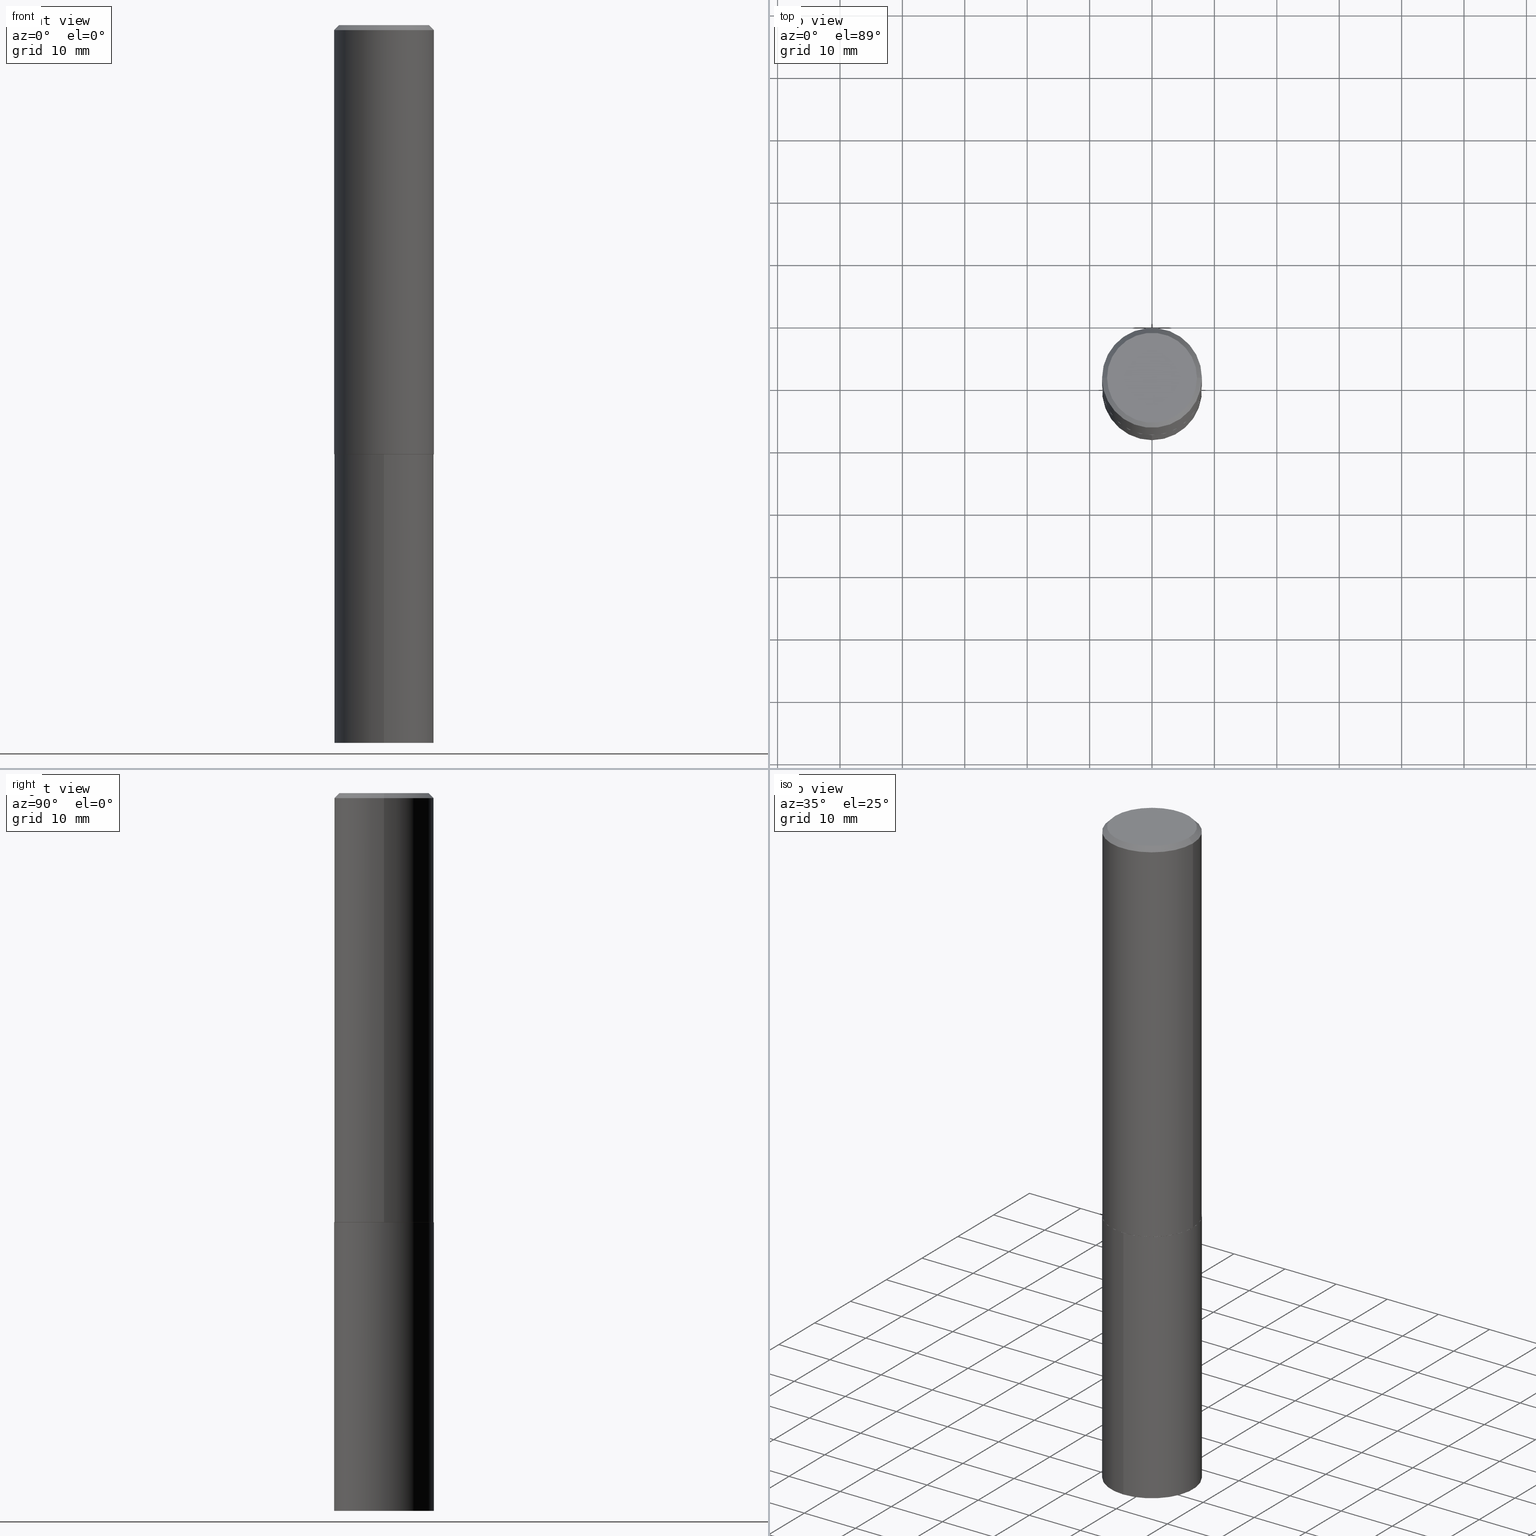
[diagram: canonical four-view strip — front | top / right | iso, engineering-drawing reading convention]
A machine part, canonical four-view strip (front | top / right | iso — engineering-drawing reading convention). The complete STEP part file that produces these views, byte-faithful:
ISO-10303-21;
HEADER;
FILE_DESCRIPTION (( 'STEP AP203' ),
    '1' );
FILE_NAME ('67806.STEP',
    '2024-04-23T12:54:03',
    ( '' ),
    ( '' ),
    'SwSTEP 2.0',
    'SolidWorks 2023',
    '' );
FILE_SCHEMA (( 'CONFIG_CONTROL_DESIGN' ));
ENDSEC;

DATA;
#1 = PERSON_AND_ORGANIZATION ( #340, #273 ) ;
#2 = COORDINATED_UNIVERSAL_TIME_OFFSET ( 5, 0, .BEHIND. ) ;
#3 = VERTEX_POINT ( 'NONE', #321 ) ;
#4 = LOCAL_TIME ( 8, 54, 3.000000000000000000, #2 ) ;
#5 = AXIS2_PLACEMENT_3D ( 'NONE', #272, #296, #136 ) ;
#6 = PERSON_AND_ORGANIZATION ( #340, #273 ) ;
#7 = ORIENTED_EDGE ( 'NONE', *, *, #188, .T. ) ;
#8 = APPROVAL_STATUS ( 'not_yet_approved' ) ;
#9 = ORIENTED_EDGE ( 'NONE', *, *, #268, .T. ) ;
#10 = ORIENTED_EDGE ( 'NONE', *, *, #213, .T. ) ;
#11 = ADVANCED_FACE ( 'NONE', ( #65 ), #176, .T. ) ;
#12 = VECTOR ( 'NONE', #239, 39.37007874015748854 ) ;
#13 = EDGE_LOOP ( 'NONE', ( #95, #316, #9, #120 ) ) ;
#14 = EDGE_LOOP ( 'NONE', ( #172, #224, #206, #254 ) ) ;
#15 = PLANE ( 'NONE',  #242 ) ;
#16 = FACE_OUTER_BOUND ( 'NONE', #277, .T. ) ;
#17 = PRODUCT_DEFINITION_FORMATION_WITH_SPECIFIED_SOURCE ( 'ANY', '', #200, .NOT_KNOWN. ) ;
#18 = DIRECTION ( 'NONE',  ( 2.445468806185136597E-29, -3.491481338843145583E-15, -1.000000000000000000 ) ) ;
#19 = VECTOR ( 'NONE', #292, 39.37007874015748854 ) ;
#20 = CARTESIAN_POINT ( 'NONE',  ( 6.618905870820689755E-29, -9.450043391712855461E-15, -2.706599999999999451 ) ) ;
#21 = CARTESIAN_POINT ( 'NONE',  ( 6.618905870820689755E-29, -9.450043391712855461E-15, -2.706599999999999451 ) ) ;
#22 = PRODUCT_DEFINITION ( 'UNKNOWN', '', #17, #86 ) ;
#23 = EDGE_CURVE ( 'NONE', #64, #61, #353, .T. ) ;
#24 = DIRECTION ( 'NONE',  ( -2.445468806185136597E-29, 3.491481338843145583E-15, 1.000000000000000000 ) ) ;
#25 = DIRECTION ( 'NONE',  ( 2.445468806185136597E-29, -3.491481338843145583E-15, -1.000000000000000000 ) ) ;
#26 = ORIENTED_EDGE ( 'NONE', *, *, #104, .T. ) ;
#27 = FACE_OUTER_BOUND ( 'NONE', #260, .T. ) ;
#28 = PERSON_AND_ORGANIZATION ( #340, #273 ) ;
#29 = ORIENTED_EDGE ( 'NONE', *, *, #256, .F. ) ;
#30 = PRODUCT_DEFINITION_SHAPE ( 'NONE', 'NONE',  #22 ) ;
#31 = EDGE_CURVE ( 'NONE', #225, #232, #196, .T. ) ;
#32 = CALENDAR_DATE ( 2024, 23, 4 ) ;
#33 = VERTEX_POINT ( 'NONE', #100 ) ;
#34 = CIRCLE ( 'NONE', #84, 0.3149500000000000077 ) ;
#35 = SECURITY_CLASSIFICATION_LEVEL ( 'unclassified' ) ;
#36 = ORIENTED_EDGE ( 'NONE', *, *, #91, .T. ) ;
#37 = ADVANCED_FACE ( 'NONE', ( #358 ), #15, .F. ) ;
#38 = ORIENTED_EDGE ( 'NONE', *, *, #23, .F. ) ;
#39 = ORIENTED_EDGE ( 'NONE', *, *, #125, .T. ) ;
#40 = AXIS2_PLACEMENT_3D ( 'NONE', #301, #79, #47 ) ;
#41 = DIRECTION ( 'NONE',  ( -2.445468806185136877E-29, 3.491481338843145188E-15, 1.000000000000000000 ) ) ;
#42 = FACE_OUTER_BOUND ( 'NONE', #96, .T. ) ;
#43 = CARTESIAN_POINT ( 'NONE',  ( 7.642090019328594780E-31, -1.091087918388489034E-16, -0.03125000000000017347 ) ) ;
#44 = DIRECTION ( 'NONE',  ( -2.438088387897960049E-29, 3.491481338843145188E-15, 1.000000000000000000 ) ) ;
#45 = CARTESIAN_POINT ( 'NONE',  ( 6.617683136417595833E-29, -9.448297651043434746E-15, -2.706099999999999284 ) ) ;
#46 = DIRECTION ( 'NONE',  ( -2.445468806185136597E-29, 3.491481338843145583E-15, 1.000000000000000000 ) ) ;
#47 = DIRECTION ( 'NONE',  ( 1.000000000000000000, -6.982962677686264344E-15, 0.000000000000000000 ) ) ;
#48 = APPROVAL ( #144, 'UNSPECIFIED' ) ;
#49 = DIRECTION ( 'NONE',  ( 1.000000000000000000, -6.982962677686265922E-15, 4.876176775795935232E-29 ) ) ;
#50 = LINE ( 'NONE', #271, #287 ) ;
#51 = SECURITY_CLASSIFICATION ( '', '', #35 ) ;
#52 = CARTESIAN_POINT ( 'NONE',  ( 0.3144500000000005069, -1.164583600571130548E-14, -2.706599999999999451 ) ) ;
#53 = DIRECTION ( 'NONE',  ( -2.444512680604651290E-29, 3.492850565093688912E-15, 1.000000000000000000 ) ) ;
#54 = PERSON_AND_ORGANIZATION ( #340, #273 ) ;
#55 = COORDINATED_UNIVERSAL_TIME_OFFSET ( 5, 0, .BEHIND. ) ;
#56 = SHAPE_DEFINITION_REPRESENTATION ( #30, #202 ) ;
#57 = EDGE_CURVE ( 'NONE', #64, #198, #204, .T. ) ;
#58 = DIRECTION ( 'NONE',  ( 1.000000000000000000, 0.000000000000000000, 0.000000000000000000 ) ) ;
#59 = ORIENTED_EDGE ( 'NONE', *, *, #268, .F. ) ;
#60 = APPROVAL_ROLE ( '' ) ;
#61 = VERTEX_POINT ( 'NONE', #105 ) ;
#62 = ADVANCED_FACE ( 'NONE', ( #212 ), #210, .F. ) ;
#63 = CIRCLE ( 'NONE', #70, 0.3149500000000000077 ) ;
#64 = VERTEX_POINT ( 'NONE', #208 ) ;
#65 = FACE_OUTER_BOUND ( 'NONE', #203, .T. ) ;
#66 = DIRECTION ( 'NONE',  ( 2.444512680604651290E-29, -3.492850565093688518E-15, -1.000000000000000000 ) ) ;
#67 = ORIENTED_EDGE ( 'NONE', *, *, #23, .T. ) ;
#68 = AXIS2_PLACEMENT_3D ( 'NONE', #111, #25, #88 ) ;
#69 = AXIS2_PLACEMENT_3D ( 'NONE', #20, #229, #124 ) ;
#70 = AXIS2_PLACEMENT_3D ( 'NONE', #247, #53, #366 ) ;
#71 = DIRECTION ( 'NONE',  ( -6.982962677686265922E-15, -1.000000000000000000, 3.469564049740292770E-15 ) ) ;
#72 = DIRECTION ( 'NONE',  ( 6.982962677686265922E-15, 1.000000000000000000, -3.492850565093688518E-15 ) ) ;
#73 = DIRECTION ( 'NONE',  ( -6.982962677686265922E-15, -1.000000000000000000, 3.469564049740292770E-15 ) ) ;
#74 = CARTESIAN_POINT ( 'NONE',  ( -1.178467787315321149E-46, 1.682539673960460649E-32, 4.818985154644839761E-18 ) ) ;
#75 = APPROVAL ( #348, 'UNSPECIFIED' ) ;
#76 = FACE_OUTER_BOUND ( 'NONE', #258, .T. ) ;
#77 = AXIS2_PLACEMENT_3D ( 'NONE', #218, #66, #72 ) ;
#78 = CARTESIAN_POINT ( 'NONE',  ( 2.237854346276523548E-15, 0.3149499999999842426, -4.527600000000001401 ) ) ;
#79 = DIRECTION ( 'NONE',  ( -2.445468806185136597E-29, 3.491481338843145583E-15, 1.000000000000000000 ) ) ;
#80 = LINE ( 'NONE', #189, #339 ) ;
#81 = UNCERTAINTY_MEASURE_WITH_UNIT (LENGTH_MEASURE( 1.000000000000000082E-05 ), #82, 'distance_accuracy_value', 'NONE');
#82 =( CONVERSION_BASED_UNIT ( 'INCH', #245 ) LENGTH_UNIT ( ) NAMED_UNIT ( #300 ) );
#83 = LOCAL_TIME ( 8, 54, 3.000000000000000000, #195 ) ;
#84 = AXIS2_PLACEMENT_3D ( 'NONE', #184, #231, #354 ) ;
#85 = LINE ( 'NONE', #216, #97 ) ;
#86 = DESIGN_CONTEXT ( 'detailed design', #264, 'design' ) ;
#87 = DATE_AND_TIME ( #341, #307 ) ;
#88 = DIRECTION ( 'NONE',  ( -1.000000000000000000, 6.982962677686266711E-15, 0.000000000000000000 ) ) ;
#89 = CALENDAR_DATE ( 2024, 23, 4 ) ;
#90 = ADVANCED_FACE ( 'NONE', ( #76 ), #158, .T. ) ;
#91 = EDGE_CURVE ( 'NONE', #3, #349, #334, .T. ) ;
#92 = DATE_AND_TIME ( #32, #337 ) ;
#93 = AXIS2_PLACEMENT_3D ( 'NONE', #291, #123, #230 ) ;
#94 = PERSON_AND_ORGANIZATION_ROLE ( 'design_owner' ) ;
#95 = ORIENTED_EDGE ( 'NONE', *, *, #240, .F. ) ;
#96 = EDGE_LOOP ( 'NONE', ( #110, #10, #7, #201 ) ) ;
#97 = VECTOR ( 'NONE', #194, 39.37007874015748143 ) ;
#98 = EDGE_LOOP ( 'NONE', ( #262, #26 ) ) ;
#99 = ORIENTED_EDGE ( 'NONE', *, *, #214, .F. ) ;
#100 = CARTESIAN_POINT ( 'NONE',  ( -2.199284095337223212E-15, -0.3149500000000094446, -2.706599999999998563 ) ) ;
#101 = ADVANCED_FACE ( 'NONE', ( #42 ), #249, .T. ) ;
#102 = CIRCLE ( 'NONE', #154, 0.3149500000000000077 ) ;
#103 = DIRECTION ( 'NONE',  ( 1.000000000000000000, -6.982962677686267499E-15, 4.876309930827607477E-29 ) ) ;
#104 = EDGE_CURVE ( 'NONE', #259, #33, #346, .T. ) ;
#105 = CARTESIAN_POINT ( 'NONE',  ( -0.3149500000000000077, -2.540848875164704755E-15, -0.03125000000000017347 ) ) ;
#106 = CYLINDRICAL_SURFACE ( 'NONE', #173, 0.3149500000000001743 ) ;
#107 = VECTOR ( 'NONE', #360, 39.37007874015748143 ) ;
#108 = VECTOR ( 'NONE', #41, 39.37007874015748143 ) ;
#109 = CARTESIAN_POINT ( 'NONE',  ( 6.617683136417595833E-29, -9.448297651043434746E-15, -2.706099999999999284 ) ) ;
#110 = ORIENTED_EDGE ( 'NONE', *, *, #31, .F. ) ;
#111 = CARTESIAN_POINT ( 'NONE',  ( 7.642090019328594780E-31, -1.091087918388489034E-16, -0.03125000000000017347 ) ) ;
#112 = VECTOR ( 'NONE', #303, 39.37007874015748854 ) ;
#113 = AXIS2_PLACEMENT_3D ( 'NONE', #74, #46, #103 ) ;
#114 = PERSON_AND_ORGANIZATION_ROLE ( 'classification_officer' ) ;
#115 = PERSON_AND_ORGANIZATION ( #340, #273 ) ;
#116 = CLOSED_SHELL ( 'NONE', ( #90, #37, #199, #166 ) ) ;
#117 = CALENDAR_DATE ( 2024, 23, 4 ) ;
#118 = VERTEX_POINT ( 'NONE', #233 ) ;
#119 = APPROVAL_DATE_TIME ( #344, #226 ) ;
#120 = ORIENTED_EDGE ( 'NONE', *, *, #104, .F. ) ;
#121 = PLANE ( 'NONE',  #77 ) ;
#122 = ORIENTED_EDGE ( 'NONE', *, *, #240, .T. ) ;
#123 = DIRECTION ( 'NONE',  ( -2.445468806185136597E-29, 3.491481338843145583E-15, 1.000000000000000000 ) ) ;
#124 = DIRECTION ( 'NONE',  ( -6.982962677686265922E-15, -1.000000000000000000, 3.469564049740292770E-15 ) ) ;
#125 = EDGE_CURVE ( 'NONE', #198, #170, #131, .T. ) ;
#126 = ORIENTED_EDGE ( 'NONE', *, *, #213, .F. ) ;
#127 = DIRECTION ( 'NONE',  ( -2.444512680604651290E-29, 3.492850565093688912E-15, 1.000000000000000000 ) ) ;
#128 = CARTESIAN_POINT ( 'NONE',  ( 0.3149500000000000077, -2.269822636236992858E-15, -0.03125000000000017347 ) ) ;
#129 = AXIS2_PLACEMENT_3D ( 'NONE', #109, #24, #248 ) ;
#130 = AXIS2_PLACEMENT_3D ( 'NONE', #135, #215, #333 ) ;
#131 = LINE ( 'NONE', #356, #107 ) ;
#132 = EDGE_CURVE ( 'NONE', #232, #225, #252, .T. ) ;
#133 = LINE ( 'NONE', #162, #12 ) ;
#134 = CARTESIAN_POINT ( 'NONE',  ( 7.642090019328594780E-31, -1.091087918388489034E-16, -0.03125000000000017347 ) ) ;
#135 = CARTESIAN_POINT ( 'NONE',  ( 6.617683136417595833E-29, -9.448297651043434746E-15, -2.706099999999999284 ) ) ;
#136 = DIRECTION ( 'NONE',  ( 1.000000000000000000, -6.982962677686267499E-15, 4.876309930827607477E-29 ) ) ;
#137 = CC_DESIGN_SECURITY_CLASSIFICATION ( #51, ( #17 ) ) ;
#138 =( LENGTH_UNIT ( ) NAMED_UNIT ( * ) SI_UNIT ( $, .METRE. ) );
#139 = ORIENTED_EDGE ( 'NONE', *, *, #192, .F. ) ;
#140 = FACE_OUTER_BOUND ( 'NONE', #251, .T. ) ;
#141 = CARTESIAN_POINT ( 'NONE',  ( -0.2837000000000000077, 2.035620907579017403E-15, 4.818985154630794339E-18 ) ) ;
#142 = APPROVAL_ROLE ( '' ) ;
#143 = CC_DESIGN_DATE_AND_TIME_ASSIGNMENT ( #345, #250, ( #51 ) ) ;
#144 = APPROVAL_STATUS ( 'not_yet_approved' ) ;
#145 = APPROVAL_ROLE ( '' ) ;
#146 = ORIENTED_EDGE ( 'NONE', *, *, #91, .F. ) ;
#147 = CC_DESIGN_APPROVAL ( #226, ( #22 ) ) ;
#148 = DATE_AND_TIME ( #117, #83 ) ;
#149 = ORIENTED_EDGE ( 'NONE', *, *, #57, .F. ) ;
#150 = ORIENTED_EDGE ( 'NONE', *, *, #188, .F. ) ;
#151 = ADVANCED_FACE ( 'NONE', ( #161 ), #241, .F. ) ;
#152 = ORIENTED_EDGE ( 'NONE', *, *, #125, .F. ) ;
#153 = PRODUCT_RELATED_PRODUCT_CATEGORY ( 'detail', '', ( #200 ) ) ;
#154 = AXIS2_PLACEMENT_3D ( 'NONE', #43, #330, #325 ) ;
#155 = CONICAL_SURFACE ( 'NONE', #68, 0.3149500000000000077, 0.7853981633974456145 ) ;
#156 = ORIENTED_EDGE ( 'NONE', *, *, #234, .F. ) ;
#157 = DIRECTION ( 'NONE',  ( -2.444512680604651290E-29, 3.492850565093688912E-15, 1.000000000000000000 ) ) ;
#158 = CYLINDRICAL_SURFACE ( 'NONE', #209, 0.3149500000000000077 ) ;
#159 = DIRECTION ( 'NONE',  ( -2.445468806185136597E-29, 3.491481338843145583E-15, 1.000000000000000000 ) ) ;
#160 = CC_DESIGN_APPROVAL ( #75, ( #51 ) ) ;
#161 = FACE_OUTER_BOUND ( 'NONE', #283, .T. ) ;
#162 = CARTESIAN_POINT ( 'NONE',  ( 0.3149500000000002298, -1.164758174638072619E-14, -2.706099999999999284 ) ) ;
#163 = CARTESIAN_POINT ( 'NONE',  ( -0.3149500000000002298, -7.210443304766998761E-15, -2.706099999999999284 ) ) ;
#164 =( NAMED_UNIT ( * ) PLANE_ANGLE_UNIT ( ) SI_UNIT ( $, .RADIAN. ) );
#165 = LINE ( 'NONE', #163, #112 ) ;
#166 = ADVANCED_FACE ( 'NONE', ( #220 ), #121, .F. ) ;
#167 = CARTESIAN_POINT ( 'NONE',  ( 7.642090019328594780E-31, -1.091087918388489034E-16, -0.03125000000000017347 ) ) ;
#168 = APPROVAL_DATE_TIME ( #148, #48 ) ;
#169 = DIRECTION ( 'NONE',  ( 0.000000000000000000, 0.000000000000000000, 1.000000000000000000 ) ) ;
#170 = VERTEX_POINT ( 'NONE', #322 ) ;
#171 = PERSON_AND_ORGANIZATION_ROLE ( 'creator' ) ;
#172 = ORIENTED_EDGE ( 'NONE', *, *, #256, .T. ) ;
#173 = AXIS2_PLACEMENT_3D ( 'NONE', #187, #304, #49 ) ;
#174 = ORIENTED_EDGE ( 'NONE', *, *, #132, .T. ) ;
#175 = CC_DESIGN_PERSON_AND_ORGANIZATION_ASSIGNMENT ( #280, #94, ( #200 ) ) ;
#176 = CYLINDRICAL_SURFACE ( 'NONE', #93, 0.3149500000000001743 ) ;
#177 = LINE ( 'NONE', #128, #19 ) ;
#178 = ORIENTED_EDGE ( 'NONE', *, *, #362, .T. ) ;
#179 = AXIS2_PLACEMENT_3D ( 'NONE', #328, #269, #73 ) ;
#180 = DIRECTION ( 'NONE',  ( -2.445468806185136597E-29, 3.491481338843145583E-15, 1.000000000000000000 ) ) ;
#181 = CARTESIAN_POINT ( 'NONE',  ( 0.3149500000000002298, -1.164758174638072619E-14, -2.706099999999999284 ) ) ;
#182 = DIRECTION ( 'NONE',  ( -6.982962677686265922E-15, -1.000000000000000000, 3.469564049740292770E-15 ) ) ;
#183 = APPLICATION_CONTEXT ( 'configuration controlled 3d designs of mechanical parts and assemblies' ) ;
#184 = CARTESIAN_POINT ( 'NONE',  ( 6.618905870820689755E-29, -9.450043391712855461E-15, -2.706599999999999451 ) ) ;
#185 = AXIS2_PLACEMENT_3D ( 'NONE', #265, #127, #182 ) ;
#186 = CARTESIAN_POINT ( 'NONE',  ( 6.618905870820689755E-29, -9.450043391712855461E-15, -2.706599999999999451 ) ) ;
#187 = CARTESIAN_POINT ( 'NONE',  ( 0.000000000000000000, 0.000000000000000000, 0.000000000000000000 ) ) ;
#188 = EDGE_CURVE ( 'NONE', #170, #61, #102, .T. ) ;
#189 = CARTESIAN_POINT ( 'NONE',  ( -0.3149500000000000077, 2.090175303498441165E-15, -0.03125000000000017347 ) ) ;
#190 = APPROVAL_PERSON_ORGANIZATION ( #1, #226, #145 ) ;
#191 = CARTESIAN_POINT ( 'NONE',  ( 0.2837000000000000077, -2.108072959102388127E-15, 4.818985154659137865E-18 ) ) ;
#192 = EDGE_CURVE ( 'NONE', #118, #290, #279, .T. ) ;
#193 = COORDINATED_UNIVERSAL_TIME_OFFSET ( 5, 0, .BEHIND. ) ;
#194 = DIRECTION ( 'NONE',  ( -2.444512680604651010E-29, 3.492850565093688518E-15, 1.000000000000000000 ) ) ;
#195 = COORDINATED_UNIVERSAL_TIME_OFFSET ( 5, 0, .BEHIND. ) ;
#196 = CIRCLE ( 'NONE', #5, 0.2837000000000000077 ) ;
#197 = PERSON_AND_ORGANIZATION ( #340, #273 ) ;
#198 = VERTEX_POINT ( 'NONE', #181 ) ;
#199 = ADVANCED_FACE ( 'NONE', ( #261 ), #211, .T. ) ;
#200 = PRODUCT ( '67806', '67806', '', ( #311 ) ) ;
#201 = ORIENTED_EDGE ( 'NONE', *, *, #295, .F. ) ;
#202 = ADVANCED_BREP_SHAPE_REPRESENTATION ( '67806', ( #237, #244, #235 ), #267 ) ;
#203 = EDGE_LOOP ( 'NONE', ( #38, #355, #39, #156 ) ) ;
#204 = CIRCLE ( 'NONE', #40, 0.3149500000000002298 ) ;
#205 = ADVANCED_FACE ( 'NONE', ( #16 ), #306, .T. ) ;
#206 = ORIENTED_EDGE ( 'NONE', *, *, #362, .F. ) ;
#207 = CARTESIAN_POINT ( 'NONE',  ( -0.3149500000000001743, 2.237854346276436774E-15, -1.549218606675783237E-29 ) ) ;
#208 = CARTESIAN_POINT ( 'NONE',  ( -0.3149500000000002298, -7.210443304766998761E-15, -2.706099999999999284 ) ) ;
#209 = AXIS2_PLACEMENT_3D ( 'NONE', #186, #157, #71 ) ;
#210 = PLANE ( 'NONE',  #228 ) ;
#211 = CYLINDRICAL_SURFACE ( 'NONE', #69, 0.3149500000000000077 ) ;
#212 = FACE_OUTER_BOUND ( 'NONE', #352, .T. ) ;
#213 = EDGE_CURVE ( 'NONE', #225, #170, #177, .T. ) ;
#214 = EDGE_CURVE ( 'NONE', #33, #259, #34, .T. ) ;
#215 = DIRECTION ( 'NONE',  ( -2.445468806185136597E-29, 3.491481338843145583E-15, 1.000000000000000000 ) ) ;
#216 = CARTESIAN_POINT ( 'NONE',  ( 2.237854346276501066E-15, 0.3149499999999905708, -2.706600000000000783 ) ) ;
#217 = CARTESIAN_POINT ( 'NONE',  ( 6.618905870820689755E-29, -9.450043391712855461E-15, -2.706599999999999451 ) ) ;
#218 = CARTESIAN_POINT ( 'NONE',  ( 6.618905870820689755E-29, -9.450043391712855461E-15, -2.706599999999999451 ) ) ;
#219 = AXIS2_PLACEMENT_3D ( 'NONE', #167, #278, #274 ) ;
#220 = FACE_OUTER_BOUND ( 'NONE', #98, .T. ) ;
#221 = APPLICATION_PROTOCOL_DEFINITION ( 'international standard', 'config_control_design', 1994, #183 ) ;
#222 = CC_DESIGN_PERSON_AND_ORGANIZATION_ASSIGNMENT ( #309, #257, ( #17 ) ) ;
#223 = CIRCLE ( 'NONE', #219, 0.3149500000000000077 ) ;
#224 = ORIENTED_EDGE ( 'NONE', *, *, #336, .T. ) ;
#225 = VERTEX_POINT ( 'NONE', #191 ) ;
#226 = APPROVAL ( #8, 'UNSPECIFIED' ) ;
#227 = ORIENTED_EDGE ( 'NONE', *, *, #336, .F. ) ;
#228 = AXIS2_PLACEMENT_3D ( 'NONE', #21, #44, #332 ) ;
#229 = DIRECTION ( 'NONE',  ( -2.444512680604651290E-29, 3.492850565093688912E-15, 1.000000000000000000 ) ) ;
#230 = DIRECTION ( 'NONE',  ( 1.000000000000000000, -6.982962677686265922E-15, 4.876176775795935232E-29 ) ) ;
#231 = DIRECTION ( 'NONE',  ( -2.444512680604651290E-29, 3.492850565093688912E-15, 1.000000000000000000 ) ) ;
#232 = VERTEX_POINT ( 'NONE', #141 ) ;
#233 = CARTESIAN_POINT ( 'NONE',  ( -2.199284095337178641E-15, -0.3149500000000157729, -4.527599999999999625 ) ) ;
#234 = EDGE_CURVE ( 'NONE', #61, #170, #223, .T. ) ;
#235 = AXIS2_PLACEMENT_3D ( 'NONE', #315, #169, #58 ) ;
#236 = CARTESIAN_POINT ( 'NONE',  ( -5.892338936576605744E-47, 8.412698369802303245E-33, 2.409492577322419881E-18 ) ) ;
#237 = MANIFOLD_SOLID_BREP ( 'Body-Move/Copy2[1]', #116 ) ;
#238 = EDGE_CURVE ( 'NONE', #349, #198, #133, .T. ) ;
#239 = DIRECTION ( 'NONE',  ( 0.7071067811862092878, -2.468850131078715470E-15, 0.7071067811868855246 ) ) ;
#240 = EDGE_CURVE ( 'NONE', #290, #259, #85, .T. ) ;
#241 = PLANE ( 'NONE',  #312 ) ;
#242 = AXIS2_PLACEMENT_3D ( 'NONE', #326, #270, #243 ) ;
#243 = DIRECTION ( 'NONE',  ( -6.982962677686265922E-15, -1.000000000000000000, 3.492850565093688518E-15 ) ) ;
#244 = MANIFOLD_SOLID_BREP ( 'Body-Move/Copy2[2]', #294 ) ;
#245 = LENGTH_MEASURE_WITH_UNIT ( LENGTH_MEASURE( 0.02539999999999999897 ), #138 );
#246 = ORIENTED_EDGE ( 'NONE', *, *, #238, .T. ) ;
#247 = CARTESIAN_POINT ( 'NONE',  ( 1.107036346220176247E-28, -1.581052427074846768E-14, -4.527600000000000513 ) ) ;
#248 = DIRECTION ( 'NONE',  ( 1.000000000000000000, -6.982962677686264344E-15, 0.000000000000000000 ) ) ;
#249 = CONICAL_SURFACE ( 'NONE', #313, 0.3149500000000000077, 0.7853981633974456145 ) ;
#250 = DATE_TIME_ROLE ( 'classification_date' ) ;
#251 = EDGE_LOOP ( 'NONE', ( #178, #67, #150, #152 ) ) ;
#252 = CIRCLE ( 'NONE', #113, 0.2837000000000000077 ) ;
#253 = APPLICATION_PROTOCOL_DEFINITION ( 'international standard', 'config_control_design', 1994, #264 ) ;
#254 = ORIENTED_EDGE ( 'NONE', *, *, #238, .F. ) ;
#255 = LOCAL_TIME ( 8, 54, 3.000000000000000000, #193 ) ;
#256 = EDGE_CURVE ( 'NONE', #349, #3, #275, .T. ) ;
#257 = PERSON_AND_ORGANIZATION_ROLE ( 'creator' ) ;
#258 = EDGE_LOOP ( 'NONE', ( #293, #122, #99, #59 ) ) ;
#259 = VERTEX_POINT ( 'NONE', #363 ) ;
#260 = EDGE_LOOP ( 'NONE', ( #126, #289, #285, #324 ) ) ;
#261 = FACE_OUTER_BOUND ( 'NONE', #13, .T. ) ;
#262 = ORIENTED_EDGE ( 'NONE', *, *, #214, .T. ) ;
#263 = ADVANCED_FACE ( 'NONE', ( #359 ), #327, .T. ) ;
#264 = APPLICATION_CONTEXT ( 'configuration controlled 3d designs of mechanical parts and assemblies' ) ;
#265 = CARTESIAN_POINT ( 'NONE',  ( 6.618905870820689755E-29, -9.450043391712855461E-15, -2.706599999999999451 ) ) ;
#266 = CARTESIAN_POINT ( 'NONE',  ( 6.618905870820689755E-29, -9.450043391712855461E-15, -2.706599999999999451 ) ) ;
#267 =( GEOMETRIC_REPRESENTATION_CONTEXT ( 3 ) GLOBAL_UNCERTAINTY_ASSIGNED_CONTEXT ( ( #81 ) ) GLOBAL_UNIT_ASSIGNED_CONTEXT ( ( #82, #164, #302 ) ) REPRESENTATION_CONTEXT ( 'NONE', 'WORKASPACE' ) );
#268 = EDGE_CURVE ( 'NONE', #118, #33, #50, .T. ) ;
#269 = DIRECTION ( 'NONE',  ( -2.444512680604651290E-29, 3.492850565093688912E-15, 1.000000000000000000 ) ) ;
#270 = DIRECTION ( 'NONE',  ( -2.444512680604651290E-29, 3.492850565093688518E-15, 1.000000000000000000 ) ) ;
#271 = CARTESIAN_POINT ( 'NONE',  ( -2.199284095337223212E-15, -0.3149500000000094446, -2.706599999999998563 ) ) ;
#272 = CARTESIAN_POINT ( 'NONE',  ( -1.178467787315321149E-46, 1.682539673960460649E-32, 4.818985154644839761E-18 ) ) ;
#273 = ORGANIZATION ( 'UNSPECIFIED', 'UNSPECIFIED', '' ) ;
#274 = DIRECTION ( 'NONE',  ( 1.000000000000000000, -6.982962677686266711E-15, 0.000000000000000000 ) ) ;
#275 = CIRCLE ( 'NONE', #299, 0.3144500000000005069 ) ;
#276 = CC_DESIGN_APPROVAL ( #48, ( #17 ) ) ;
#277 = EDGE_LOOP ( 'NONE', ( #227, #36, #246, #149 ) ) ;
#278 = DIRECTION ( 'NONE',  ( -2.445468806185136597E-29, 3.491481338843145583E-15, 1.000000000000000000 ) ) ;
#279 = CIRCLE ( 'NONE', #179, 0.3149500000000000077 ) ;
#280 = PERSON_AND_ORGANIZATION ( #340, #273 ) ;
#281 = CC_DESIGN_PERSON_AND_ORGANIZATION_ASSIGNMENT ( #197, #288, ( #17 ) ) ;
#282 = COORDINATED_UNIVERSAL_TIME_OFFSET ( 5, 0, .BEHIND. ) ;
#283 = EDGE_LOOP ( 'NONE', ( #174, #350 ) ) ;
#284 = CALENDAR_DATE ( 2024, 23, 4 ) ;
#285 = ORIENTED_EDGE ( 'NONE', *, *, #295, .T. ) ;
#286 = APPROVAL_PERSON_ORGANIZATION ( #115, #75, #142 ) ;
#287 = VECTOR ( 'NONE', #338, 39.37007874015748143 ) ;
#288 = PERSON_AND_ORGANIZATION_ROLE ( 'design_supplier' ) ;
#289 = ORIENTED_EDGE ( 'NONE', *, *, #132, .F. ) ;
#290 = VERTEX_POINT ( 'NONE', #78 ) ;
#291 = CARTESIAN_POINT ( 'NONE',  ( 0.000000000000000000, 0.000000000000000000, 0.000000000000000000 ) ) ;
#292 = DIRECTION ( 'NONE',  ( 0.7071067811865455743, -7.319954787623248157E-15, -0.7071067811865493491 ) ) ;
#293 = ORIENTED_EDGE ( 'NONE', *, *, #192, .T. ) ;
#294 = CLOSED_SHELL ( 'NONE', ( #101, #310, #263, #62, #205, #11, #343, #151 ) ) ;
#295 = EDGE_CURVE ( 'NONE', #232, #61, #80, .T. ) ;
#296 = DIRECTION ( 'NONE',  ( -2.445468806185136597E-29, 3.491481338843145583E-15, 1.000000000000000000 ) ) ;
#297 = CC_DESIGN_PERSON_AND_ORGANIZATION_ASSIGNMENT ( #28, #171, ( #22 ) ) ;
#298 = DIRECTION ( 'NONE',  ( 2.438088387897960049E-29, -3.491481338843145188E-15, -1.000000000000000000 ) ) ;
#299 = AXIS2_PLACEMENT_3D ( 'NONE', #217, #342, #364 ) ;
#300 = DIMENSIONAL_EXPONENTS ( 1.000000000000000000, 0.000000000000000000, 0.000000000000000000, 0.000000000000000000, 0.000000000000000000, 0.000000000000000000, 0.000000000000000000 ) ;
#301 = CARTESIAN_POINT ( 'NONE',  ( 6.617683136417595833E-29, -9.448297651043434746E-15, -2.706099999999999284 ) ) ;
#302 =( NAMED_UNIT ( * ) SI_UNIT ( $, .STERADIAN. ) SOLID_ANGLE_UNIT ( ) );
#303 = DIRECTION ( 'NONE',  ( -0.7071067811862092878, 7.493145998869131426E-15, 0.7071067811868855246 ) ) ;
#304 = DIRECTION ( 'NONE',  ( -2.445468806185136597E-29, 3.491481338843145583E-15, 1.000000000000000000 ) ) ;
#305 = EDGE_CURVE ( 'NONE', #290, #118, #63, .T. ) ;
#306 = CONICAL_SURFACE ( 'NONE', #357, 0.3149500000000002298, 0.7853981633969702170 ) ;
#307 = LOCAL_TIME ( 8, 54, 3.000000000000000000, #55 ) ;
#308 = DIRECTION ( 'NONE',  ( -0.7071067811865455743, 2.468850131082236945E-15, -0.7071067811865493491 ) ) ;
#309 = PERSON_AND_ORGANIZATION ( #340, #273 ) ;
#310 = ADVANCED_FACE ( 'NONE', ( #140 ), #106, .T. ) ;
#311 = MECHANICAL_CONTEXT ( 'NONE', #183, 'mechanical' ) ;
#312 = AXIS2_PLACEMENT_3D ( 'NONE', #236, #298, #347 ) ;
#313 = AXIS2_PLACEMENT_3D ( 'NONE', #134, #18, #335 ) ;
#314 = APPROVAL_DATE_TIME ( #92, #75 ) ;
#315 = CARTESIAN_POINT ( 'NONE',  ( 0.000000000000000000, 0.000000000000000000, 0.000000000000000000 ) ) ;
#316 = ORIENTED_EDGE ( 'NONE', *, *, #305, .T. ) ;
#317 = DATE_TIME_ROLE ( 'creation_date' ) ;
#318 = ORIENTED_EDGE ( 'NONE', *, *, #305, .F. ) ;
#319 = APPROVAL_PERSON_ORGANIZATION ( #6, #48, #60 ) ;
#320 = EDGE_LOOP ( 'NONE', ( #139, #318 ) ) ;
#321 = CARTESIAN_POINT ( 'NONE',  ( -0.3144500000000005069, -7.213092531941107596E-15, -2.706599999999999451 ) ) ;
#322 = CARTESIAN_POINT ( 'NONE',  ( 0.3149500000000000077, -2.308392887176138577E-15, -0.03125000000000017347 ) ) ;
#323 = CC_DESIGN_DATE_AND_TIME_ASSIGNMENT ( #87, #317, ( #22 ) ) ;
#324 = ORIENTED_EDGE ( 'NONE', *, *, #234, .T. ) ;
#325 = DIRECTION ( 'NONE',  ( 1.000000000000000000, -6.982962677686266711E-15, 0.000000000000000000 ) ) ;
#326 = CARTESIAN_POINT ( 'NONE',  ( 1.027094185560984401E-30, -3.151682910135036654E-14, -4.527600000000000513 ) ) ;
#327 = CONICAL_SURFACE ( 'NONE', #130, 0.3149500000000002298, 0.7853981633969702170 ) ;
#328 = CARTESIAN_POINT ( 'NONE',  ( 1.107036346220176247E-28, -1.581052427074846768E-14, -4.527600000000000513 ) ) ;
#329 = DIRECTION ( 'NONE',  ( 1.000000000000000000, -6.982962677686266711E-15, 0.000000000000000000 ) ) ;
#330 = DIRECTION ( 'NONE',  ( -2.445468806185136597E-29, 3.491481338843145583E-15, 1.000000000000000000 ) ) ;
#331 = DIRECTION ( 'NONE',  ( 1.000000000000000000, -6.982962677686264344E-15, 0.000000000000000000 ) ) ;
#332 = DIRECTION ( 'NONE',  ( 1.000000000000000000, -6.982962677686265922E-15, 4.876176775795935793E-29 ) ) ;
#333 = DIRECTION ( 'NONE',  ( 1.000000000000000000, -6.982962677686264344E-15, 0.000000000000000000 ) ) ;
#334 = CIRCLE ( 'NONE', #351, 0.3144500000000005069 ) ;
#335 = DIRECTION ( 'NONE',  ( -1.000000000000000000, 6.982962677686266711E-15, 0.000000000000000000 ) ) ;
#336 = EDGE_CURVE ( 'NONE', #3, #64, #165, .T. ) ;
#337 = LOCAL_TIME ( 8, 54, 3.000000000000000000, #282 ) ;
#338 = DIRECTION ( 'NONE',  ( -2.444512680604651010E-29, 3.492850565093688518E-15, 1.000000000000000000 ) ) ;
#339 = VECTOR ( 'NONE', #308, 39.37007874015748854 ) ;
#340 = PERSON ( 'UNSPECIFIED', 'UNSPECIFIED', 'UNSPECIFIED', ('UNSPECIFIED'), ('UNSPECIFIED'), ('UNSPECIFIED') ) ;
#341 = CALENDAR_DATE ( 2024, 23, 4 ) ;
#342 = DIRECTION ( 'NONE',  ( -2.445468806185136597E-29, 3.491481338843145583E-15, 1.000000000000000000 ) ) ;
#343 = ADVANCED_FACE ( 'NONE', ( #27 ), #155, .T. ) ;
#344 = DATE_AND_TIME ( #89, #255 ) ;
#345 = DATE_AND_TIME ( #284, #4 ) ;
#346 = CIRCLE ( 'NONE', #185, 0.3149500000000000077 ) ;
#347 = DIRECTION ( 'NONE',  ( -1.000000000000000000, 6.982962677686265922E-15, -4.876176775795935793E-29 ) ) ;
#348 = APPROVAL_STATUS ( 'not_yet_approved' ) ;
#349 = VERTEX_POINT ( 'NONE', #52 ) ;
#350 = ORIENTED_EDGE ( 'NONE', *, *, #31, .T. ) ;
#351 = AXIS2_PLACEMENT_3D ( 'NONE', #266, #180, #329 ) ;
#352 = EDGE_LOOP ( 'NONE', ( #29, #146 ) ) ;
#353 = LINE ( 'NONE', #207, #108 ) ;
#354 = DIRECTION ( 'NONE',  ( -6.982962677686265922E-15, -1.000000000000000000, 3.469564049740292770E-15 ) ) ;
#355 = ORIENTED_EDGE ( 'NONE', *, *, #57, .T. ) ;
#356 = CARTESIAN_POINT ( 'NONE',  ( 0.3149500000000001743, -2.199284095337290660E-15, 1.535751875536930690E-29 ) ) ;
#357 = AXIS2_PLACEMENT_3D ( 'NONE', #45, #159, #331 ) ;
#358 = FACE_OUTER_BOUND ( 'NONE', #320, .T. ) ;
#359 = FACE_OUTER_BOUND ( 'NONE', #14, .T. ) ;
#360 = DIRECTION ( 'NONE',  ( -2.445468806185136877E-29, 3.491481338843145188E-15, 1.000000000000000000 ) ) ;
#361 = CIRCLE ( 'NONE', #129, 0.3149500000000002298 ) ;
#362 = EDGE_CURVE ( 'NONE', #198, #64, #361, .T. ) ;
#363 = CARTESIAN_POINT ( 'NONE',  ( 2.237854346276545636E-15, 0.3149499999999905708, -2.706600000000000783 ) ) ;
#364 = DIRECTION ( 'NONE',  ( 1.000000000000000000, -6.982962677686266711E-15, 0.000000000000000000 ) ) ;
#365 = CC_DESIGN_PERSON_AND_ORGANIZATION_ASSIGNMENT ( #54, #114, ( #51 ) ) ;
#366 = DIRECTION ( 'NONE',  ( -6.982962677686265922E-15, -1.000000000000000000, 3.469564049740292770E-15 ) ) ;
ENDSEC;
END-ISO-10303-21;
